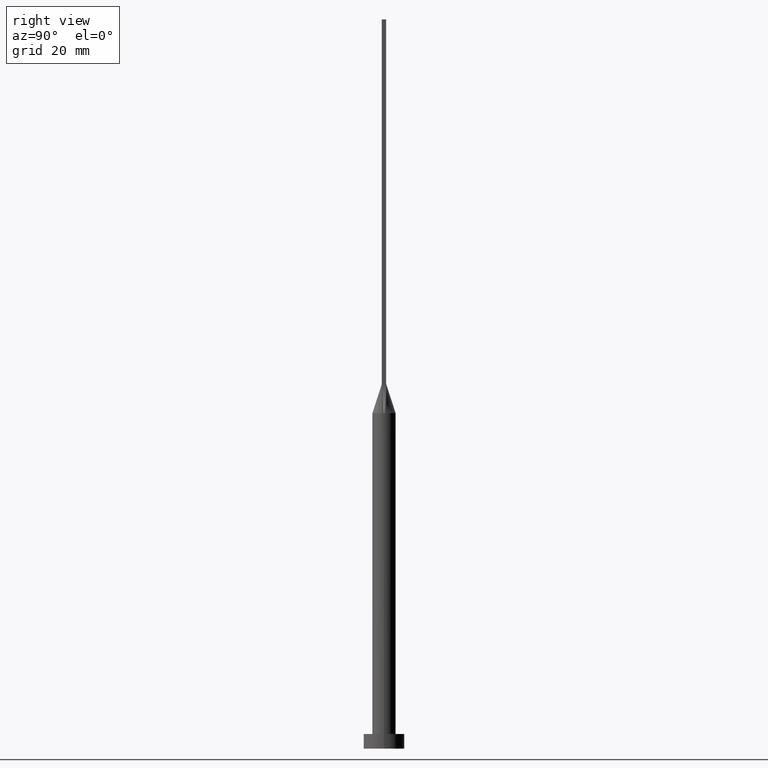
[diagram: clean part render]
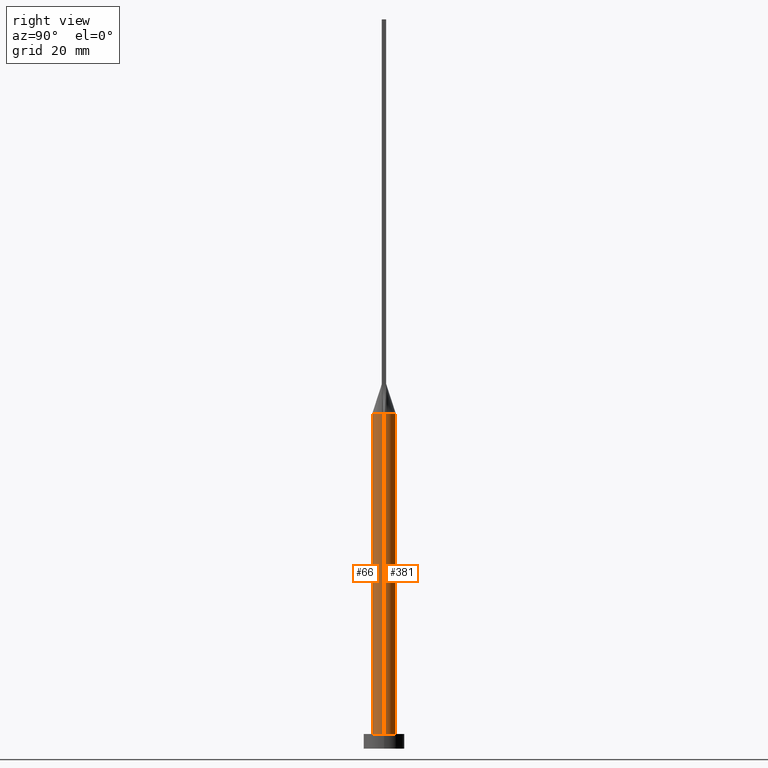
[diagram: same view with one multi-face feature highlighted, each face labeled with its STEP entity id]
A machine part, right view. The highlighted faces form ONE feature: a constant-radius fillet chain: 2 tangent blend faces with common blend radius 4 mm. The faces share edges in the B-rep.
Their STEP definitions:
[1] entity #66 (Cylinder):
#7 = DIRECTION ( 'NONE',  ( 0.000000000000000000, 0.000000000000000000, 1.000000000000000000 ) ) ;
#12 = AXIS2_PLACEMENT_3D ( 'NONE', #155, #62, #340 ) ;
#15 = VERTEX_POINT ( 'NONE', #165 ) ;
#19 = DIRECTION ( 'NONE',  ( 1.000000000000000000, 0.000000000000000000, 0.000000000000000000 ) ) ;
#25 = AXIS2_PLACEMENT_3D ( 'NONE', #118, #298, #19 ) ;
#32 = CARTESIAN_POINT ( 'NONE',  ( 0.000000000000000000, 0.000000000000000000, 115.0000000000000000 ) ) ;
#45 = VERTEX_POINT ( 'NONE', #129 ) ;
#58 = AXIS2_PLACEMENT_3D ( 'NONE', #32, #344, #299 ) ;
#62 = DIRECTION ( 'NONE',  ( 0.000000000000000000, 0.000000000000000000, 1.000000000000000000 ) ) ;
#64 = ORIENTED_EDGE ( 'NONE', *, *, #168, .F. ) ;
#66 = ADVANCED_FACE ( 'NONE', ( #210 ), #161, .T. ) ;
#69 = CIRCLE ( 'NONE', #190, 4.000000000000000000 ) ;
#79 = VECTOR ( 'NONE', #221, 1000.000000000000000 ) ;
#92 = EDGE_LOOP ( 'NONE', ( #377, #122, #488, #64, #302, #550 ) ) ;
#101 = CARTESIAN_POINT ( 'NONE',  ( -3.999622889843378992, -9.724176664205578004E-16, 115.0000000000000000 ) ) ;
#114 = DIRECTION ( 'NONE',  ( 1.000000000000000000, 0.000000000000000000, 0.000000000000000000 ) ) ;
#116 = CIRCLE ( 'NONE', #12, 4.000000000000000000 ) ;
#118 = CARTESIAN_POINT ( 'NONE',  ( 0.000000000000000000, 0.000000000000000000, 5.000000000000000000 ) ) ;
#122 = ORIENTED_EDGE ( 'NONE', *, *, #355, .F. ) ;
#129 = CARTESIAN_POINT ( 'NONE',  ( -4.000000000000000000, 0.000000000000000000, 5.000000000000000000 ) ) ;
#140 = LINE ( 'NONE', #237, #79 ) ;
#146 = CARTESIAN_POINT ( 'NONE',  ( 4.000000000000000000, 4.898587196589412829E-16, 115.0000000000000000 ) ) ;
#155 = CARTESIAN_POINT ( 'NONE',  ( 0.000000000000000000, 0.000000000000000000, 115.0000000000000000 ) ) ;
#161 = CYLINDRICAL_SURFACE ( 'NONE', #58, 4.000000000000000000 ) ;
#165 = CARTESIAN_POINT ( 'NONE',  ( 4.000000000000000000, 4.898587196589412829E-16, 5.000000000000000000 ) ) ;
#168 = EDGE_CURVE ( 'NONE', #529, #194, #116, .T. ) ;
#182 = DIRECTION ( 'NONE',  ( -0.000000000000000000, -0.000000000000000000, -1.000000000000000000 ) ) ;
#186 = EDGE_CURVE ( 'NONE', #194, #264, #413, .T. ) ;
#190 = AXIS2_PLACEMENT_3D ( 'NONE', #549, #7, #322 ) ;
#194 = VERTEX_POINT ( 'NONE', #295 ) ;
#200 = CARTESIAN_POINT ( 'NONE',  ( 0.000000000000000000, 0.000000000000000000, 115.0000000000000000 ) ) ;
#210 = FACE_OUTER_BOUND ( 'NONE', #92, .T. ) ;
#221 = DIRECTION ( 'NONE',  ( -0.000000000000000000, -0.000000000000000000, -1.000000000000000000 ) ) ;
#236 = AXIS2_PLACEMENT_3D ( 'NONE', #200, #517, #114 ) ;
#237 = CARTESIAN_POINT ( 'NONE',  ( -4.000000000000000000, 0.000000000000000000, 115.0000000000000000 ) ) ;
#238 = EDGE_CURVE ( 'NONE', #342, #15, #552, .T. ) ;
#264 = VERTEX_POINT ( 'NONE', #451 ) ;
#279 = EDGE_CURVE ( 'NONE', #529, #45, #140, .T. ) ;
#295 = CARTESIAN_POINT ( 'NONE',  ( -3.922691619086878134, -0.7845384300002018474, 115.0000000000000000 ) ) ;
#298 = DIRECTION ( 'NONE',  ( 0.000000000000000000, 0.000000000000000000, 1.000000000000000000 ) ) ;
#299 = DIRECTION ( 'NONE',  ( -1.000000000000000000, 0.000000000000000000, 0.000000000000000000 ) ) ;
#302 = ORIENTED_EDGE ( 'NONE', *, *, #279, .T. ) ;
#322 = DIRECTION ( 'NONE',  ( 1.000000000000000000, -1.421085471520200372E-14, 0.000000000000000000 ) ) ;
#330 = CIRCLE ( 'NONE', #25, 4.000000000000000000 ) ;
#340 = DIRECTION ( 'NONE',  ( 1.000000000000000000, 0.000000000000000000, 0.000000000000000000 ) ) ;
#342 = VERTEX_POINT ( 'NONE', #541 ) ;
#344 = DIRECTION ( 'NONE',  ( -0.000000000000000000, -0.000000000000000000, -1.000000000000000000 ) ) ;
#355 = EDGE_CURVE ( 'NONE', #264, #342, #69, .T. ) ;
#377 = ORIENTED_EDGE ( 'NONE', *, *, #238, .F. ) ;
#413 = CIRCLE ( 'NONE', #236, 4.000000000000000000 ) ;
#422 = VECTOR ( 'NONE', #182, 1000.000000000000000 ) ;
#451 = CARTESIAN_POINT ( 'NONE',  ( 3.922705552857197908, -0.7845410930675295047, 115.0000000000000000 ) ) ;
#488 = ORIENTED_EDGE ( 'NONE', *, *, #186, .F. ) ;
#493 = EDGE_CURVE ( 'NONE', #45, #15, #330, .T. ) ;
#517 = DIRECTION ( 'NONE',  ( 0.000000000000000000, 0.000000000000000000, 1.000000000000000000 ) ) ;
#529 = VERTEX_POINT ( 'NONE', #101 ) ;
#541 = CARTESIAN_POINT ( 'NONE',  ( 3.999622889843378992, 9.846808768795811108E-16, 115.0000000000000000 ) ) ;
#549 = CARTESIAN_POINT ( 'NONE',  ( 0.000000000000000000, 0.000000000000000000, 115.0000000000000000 ) ) ;
#550 = ORIENTED_EDGE ( 'NONE', *, *, #493, .T. ) ;
#552 = LINE ( 'NONE', #146, #422 ) ;
[2] entity #381 (Cylinder):
#10 = CARTESIAN_POINT ( 'NONE',  ( -3.922691944042750123, 0.7845383302616953936, 115.0000000000000000 ) ) ;
#15 = VERTEX_POINT ( 'NONE', #165 ) ;
#29 = CARTESIAN_POINT ( 'NONE',  ( 3.748423346357935948, 1.451418640363468349, 115.0000000000000142 ) ) ;
#34 = CIRCLE ( 'NONE', #310, 4.000000000000000000 ) ;
#39 = ORIENTED_EDGE ( 'NONE', *, *, #238, .T. ) ;
#41 = CARTESIAN_POINT ( 'NONE',  ( -2.474203369347175219, 3.177619198138199152, 114.9999999999999858 ) ) ;
#45 = VERTEX_POINT ( 'NONE', #129 ) ;
#79 = VECTOR ( 'NONE', #221, 1000.000000000000000 ) ;
#81 = EDGE_CURVE ( 'NONE', #15, #45, #525, .T. ) ;
#91 = CARTESIAN_POINT ( 'NONE',  ( 3.922678046951852959, 0.7845356715334603770, 115.0000000000000000 ) ) ;
#93 = CARTESIAN_POINT ( 'NONE',  ( -3.922691944042750123, 0.7845383302616953936, 115.0000000000000000 ) ) ;
#98 = CARTESIAN_POINT ( 'NONE',  ( 3.390424152328985752, 2.159240079384420419, 115.0000000000000284 ) ) ;
#101 = CARTESIAN_POINT ( 'NONE',  ( -3.999622889843378992, -9.724176664205578004E-16, 115.0000000000000000 ) ) ;
#103 = DIRECTION ( 'NONE',  ( 1.000000000000000000, 0.000000000000000000, 0.000000000000000000 ) ) ;
#104 = ORIENTED_EDGE ( 'NONE', *, *, #445, .F. ) ;
#108 = AXIS2_PLACEMENT_3D ( 'NONE', #504, #316, #103 ) ;
#119 = CARTESIAN_POINT ( 'NONE',  ( 0.000000000000000000, 0.000000000000000000, 5.000000000000000000 ) ) ;
#129 = CARTESIAN_POINT ( 'NONE',  ( -4.000000000000000000, 0.000000000000000000, 5.000000000000000000 ) ) ;
#139 = CARTESIAN_POINT ( 'NONE',  ( 0.5465359351457045323, 4.000000000000000888, 115.0000000000000426 ) ) ;
#140 = LINE ( 'NONE', #237, #79 ) ;
#146 = CARTESIAN_POINT ( 'NONE',  ( 4.000000000000000000, 4.898587196589412829E-16, 115.0000000000000000 ) ) ;
#165 = CARTESIAN_POINT ( 'NONE',  ( 4.000000000000000000, 4.898587196589412829E-16, 5.000000000000000000 ) ) ;
#180 = CARTESIAN_POINT ( 'NONE',  ( -3.390424152328988416, 2.159240079384419975, 115.0000000000000284 ) ) ;
#182 = DIRECTION ( 'NONE',  ( -0.000000000000000000, -0.000000000000000000, -1.000000000000000000 ) ) ;
#184 = DIRECTION ( 'NONE',  ( -1.000000000000000000, 0.000000000000000000, 0.000000000000000000 ) ) ;
#219 = CARTESIAN_POINT ( 'NONE',  ( -3.748423346357937280, 1.451418640363469015, 115.0000000000000284 ) ) ;
#221 = DIRECTION ( 'NONE',  ( -0.000000000000000000, -0.000000000000000000, -1.000000000000000000 ) ) ;
#237 = CARTESIAN_POINT ( 'NONE',  ( -4.000000000000000000, 0.000000000000000000, 115.0000000000000000 ) ) ;
#238 = EDGE_CURVE ( 'NONE', #342, #15, #552, .T. ) ;
#249 = VERTEX_POINT ( 'NONE', #91 ) ;
#255 = ORIENTED_EDGE ( 'NONE', *, *, #315, .F. ) ;
#276 = CARTESIAN_POINT ( 'NONE',  ( 2.055729527861830608, 3.471178582471582619, 114.9999999999999858 ) ) ;
#278 = CARTESIAN_POINT ( 'NONE',  ( 1.091295599582912113, 3.883835547170277014, 115.0000000000000284 ) ) ;
#279 = EDGE_CURVE ( 'NONE', #529, #45, #140, .T. ) ;
#282 = DIRECTION ( 'NONE',  ( 0.000000000000000000, 0.000000000000000000, 1.000000000000000000 ) ) ;
#310 = AXIS2_PLACEMENT_3D ( 'NONE', #372, #282, #409 ) ;
#313 = CARTESIAN_POINT ( 'NONE',  ( 0.000000000000000000, 0.000000000000000000, 115.0000000000000000 ) ) ;
#315 = EDGE_CURVE ( 'NONE', #342, #249, #34, .T. ) ;
#316 = DIRECTION ( 'NONE',  ( 0.000000000000000000, 0.000000000000000000, 1.000000000000000000 ) ) ;
#317 = ORIENTED_EDGE ( 'NONE', *, *, #81, .T. ) ;
#320 = CARTESIAN_POINT ( 'NONE',  ( 3.140797583654741931, 2.520780954342106028, 114.9999999999999858 ) ) ;
#326 = CYLINDRICAL_SURFACE ( 'NONE', #433, 4.000000000000000000 ) ;
#333 = B_SPLINE_CURVE_WITH_KNOTS ( 'NONE', 3,
 ( #533, #395, #29, #98, #320, #551, #276, #278, #139, #460, #364, #446, #41, #539, #180, #219, #496, #93 ),
 .UNSPECIFIED., .F., .F.,
 ( 4, 2, 2, 2, 2, 2, 2, 2, 4 ),
 ( 0.000000000000000000, 0.1249999999999999167, 0.2499999999999998890, 0.3749999999999998335, 0.4999999999999998890, 0.6249999999999998890, 0.7499999999999998890, 0.8750000000000000000, 1.000000000000000000 ),
 .UNSPECIFIED. ) ;
#342 = VERTEX_POINT ( 'NONE', #541 ) ;
#363 = EDGE_CURVE ( 'NONE', #407, #529, #560, .T. ) ;
#364 = CARTESIAN_POINT ( 'NONE',  ( -1.091295599582913445, 3.883835547170275682, 115.0000000000000142 ) ) ;
#372 = CARTESIAN_POINT ( 'NONE',  ( 0.000000000000000000, 0.000000000000000000, 115.0000000000000000 ) ) ;
#381 = ADVANCED_FACE ( 'NONE', ( #414 ), #326, .T. ) ;
#382 = ORIENTED_EDGE ( 'NONE', *, *, #279, .F. ) ;
#388 = AXIS2_PLACEMENT_3D ( 'NONE', #119, #574, #394 ) ;
#394 = DIRECTION ( 'NONE',  ( 1.000000000000000000, 0.000000000000000000, 0.000000000000000000 ) ) ;
#395 = CARTESIAN_POINT ( 'NONE',  ( 3.858220138661116128, 1.104977361065556440, 115.0000000000000000 ) ) ;
#407 = VERTEX_POINT ( 'NONE', #10 ) ;
#409 = DIRECTION ( 'NONE',  ( 1.000000000000000000, 0.000000000000000000, 0.000000000000000000 ) ) ;
#414 = FACE_OUTER_BOUND ( 'NONE', #436, .T. ) ;
#422 = VECTOR ( 'NONE', #182, 1000.000000000000000 ) ;
#433 = AXIS2_PLACEMENT_3D ( 'NONE', #313, #447, #184 ) ;
#436 = EDGE_LOOP ( 'NONE', ( #255, #39, #317, #382, #542, #104 ) ) ;
#445 = EDGE_CURVE ( 'NONE', #249, #407, #333, .T. ) ;
#446 = CARTESIAN_POINT ( 'NONE',  ( -2.055729527861832828, 3.471178582471583063, 114.9999999999999432 ) ) ;
#447 = DIRECTION ( 'NONE',  ( -0.000000000000000000, -0.000000000000000000, -1.000000000000000000 ) ) ;
#460 = CARTESIAN_POINT ( 'NONE',  ( -0.5465359351457050874, 4.000000000000000000, 115.0000000000000000 ) ) ;
#496 = CARTESIAN_POINT ( 'NONE',  ( -3.858220138661117460, 1.104977361065555996, 115.0000000000000284 ) ) ;
#504 = CARTESIAN_POINT ( 'NONE',  ( 0.000000000000000000, 0.000000000000000000, 115.0000000000000000 ) ) ;
#525 = CIRCLE ( 'NONE', #388, 4.000000000000000000 ) ;
#529 = VERTEX_POINT ( 'NONE', #101 ) ;
#533 = CARTESIAN_POINT ( 'NONE',  ( 3.922678046951852959, 0.7845356715334603770, 115.0000000000000000 ) ) ;
#539 = CARTESIAN_POINT ( 'NONE',  ( -3.140797583654740599, 2.520780954342106916, 114.9999999999999716 ) ) ;
#541 = CARTESIAN_POINT ( 'NONE',  ( 3.999622889843378992, 9.846808768795811108E-16, 115.0000000000000000 ) ) ;
#542 = ORIENTED_EDGE ( 'NONE', *, *, #363, .F. ) ;
#551 = CARTESIAN_POINT ( 'NONE',  ( 2.474203369347174331, 3.177619198138197820, 114.9999999999999716 ) ) ;
#552 = LINE ( 'NONE', #146, #422 ) ;
#560 = CIRCLE ( 'NONE', #108, 4.000000000000000000 ) ;
#574 = DIRECTION ( 'NONE',  ( 0.000000000000000000, 0.000000000000000000, 1.000000000000000000 ) ) ;